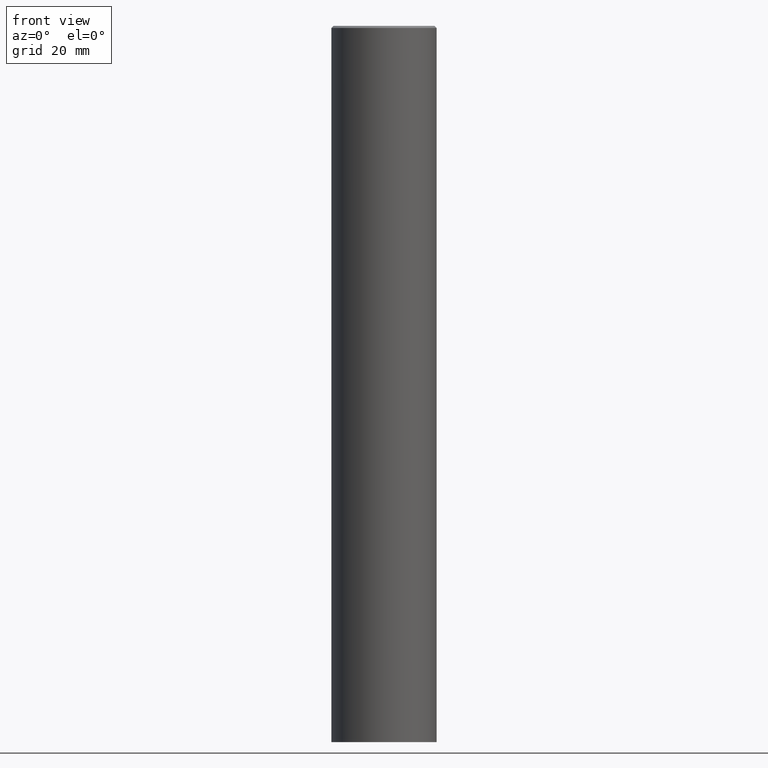
[diagram: clean part render]
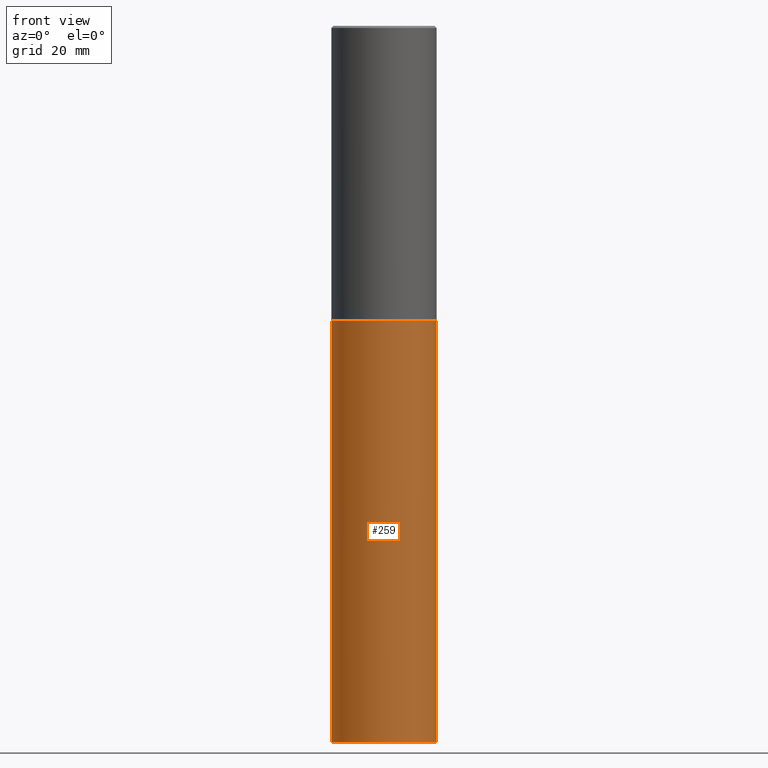
[diagram: same view with one face highlighted and labeled with its STEP entity id]
A machine part, front view. The second image highlights one B-rep face of the part: STEP entity #259.
In plain terms, the highlighted cylindrical surface (partial cylindrical patch) has radius 12.5006 mm, axis along (-0, 0, 1).
Its self-contained STEP definition (entity closure, byte-faithful):
#4 = VECTOR ( 'NONE', #146, 39.37007874015748143 ) ;
#16 = CARTESIAN_POINT ( 'NONE',  ( 0.4921499999999999764, -2.680480053456658516E-14, -6.692899999999999849 ) ) ;
#24 = DIRECTION ( 'NONE',  ( -2.445468806185136597E-29, 3.491481338843145583E-15, 1.000000000000000000 ) ) ;
#30 = DIRECTION ( 'NONE',  ( -2.445468806185136597E-29, 3.491481338843145583E-15, 1.000000000000000000 ) ) ;
#51 = ORIENTED_EDGE ( 'NONE', *, *, #103, .T. ) ;
#52 = DIRECTION ( 'NONE',  ( 1.000000000000000000, -6.982962677686265922E-15, 0.000000000000000000 ) ) ;
#77 = VERTEX_POINT ( 'NONE', #16 ) ;
#100 = EDGE_CURVE ( 'NONE', #110, #282, #158, .T. ) ;
#103 = EDGE_CURVE ( 'NONE', #77, #282, #214, .T. ) ;
#105 = CARTESIAN_POINT ( 'NONE',  ( -0.4921499999999999764, -1.299821836318722399E-14, -6.692899999999999849 ) ) ;
#110 = VERTEX_POINT ( 'NONE', #305 ) ;
#120 = LINE ( 'NONE', #174, #4 ) ;
#144 = AXIS2_PLACEMENT_3D ( 'NONE', #279, #223, #250 ) ;
#146 = DIRECTION ( 'NONE',  ( -2.445468806185136877E-29, 3.491481338843145188E-15, 1.000000000000000000 ) ) ;
#158 = CIRCLE ( 'NONE', #265, 0.4921499999999999764 ) ;
#169 = EDGE_CURVE ( 'NONE', #338, #110, #120, .T. ) ;
#171 = VECTOR ( 'NONE', #336, 39.37007874015748143 ) ;
#174 = CARTESIAN_POINT ( 'NONE',  ( -0.4921499999999999764, 3.496936074043332897E-15, -2.420853904668951509E-29 ) ) ;
#191 = CIRCLE ( 'NONE', #195, 0.4921499999999999764 ) ;
#195 = AXIS2_PLACEMENT_3D ( 'NONE', #220, #30, #52 ) ;
#207 = CARTESIAN_POINT ( 'NONE',  ( 6.739467482965618232E-29, -9.622173421717824390E-15, -2.755900000000000016 ) ) ;
#214 = LINE ( 'NONE', #340, #171 ) ;
#220 = CARTESIAN_POINT ( 'NONE',  ( 1.636727817291649966E-28, -2.336813545274328780E-14, -6.692899999999999849 ) ) ;
#223 = DIRECTION ( 'NONE',  ( -2.445468806185136597E-29, 3.491481338843145583E-15, 1.000000000000000000 ) ) ;
#240 = ORIENTED_EDGE ( 'NONE', *, *, #100, .F. ) ;
#250 = DIRECTION ( 'NONE',  ( 1.000000000000000000, -6.982962677686265922E-15, 4.876176775795935793E-29 ) ) ;
#259 = ADVANCED_FACE ( 'NONE', ( #364 ), #277, .T. ) ;
#262 = ORIENTED_EDGE ( 'NONE', *, *, #275, .T. ) ;
#265 = AXIS2_PLACEMENT_3D ( 'NONE', #207, #24, #365 ) ;
#273 = EDGE_LOOP ( 'NONE', ( #359, #262, #51, #240 ) ) ;
#275 = EDGE_CURVE ( 'NONE', #338, #77, #191, .T. ) ;
#277 = CYLINDRICAL_SURFACE ( 'NONE', #144, 0.4921499999999999764 ) ;
#279 = CARTESIAN_POINT ( 'NONE',  ( 0.000000000000000000, 0.000000000000000000, 0.000000000000000000 ) ) ;
#282 = VERTEX_POINT ( 'NONE', #329 ) ;
#305 = CARTESIAN_POINT ( 'NONE',  ( -0.4921499999999999764, -1.299821836318722399E-14, -2.755900000000000016 ) ) ;
#329 = CARTESIAN_POINT ( 'NONE',  ( 0.4921499999999999764, -1.305883850354112017E-14, -2.755900000000000016 ) ) ;
#336 = DIRECTION ( 'NONE',  ( -2.445468806185136877E-29, 3.491481338843145188E-15, 1.000000000000000000 ) ) ;
#338 = VERTEX_POINT ( 'NONE', #105 ) ;
#340 = CARTESIAN_POINT ( 'NONE',  ( 0.4921499999999999764, -3.436665081823295777E-15, 2.399810400207969603E-29 ) ) ;
#359 = ORIENTED_EDGE ( 'NONE', *, *, #169, .F. ) ;
#364 = FACE_OUTER_BOUND ( 'NONE', #273, .T. ) ;
#365 = DIRECTION ( 'NONE',  ( 1.000000000000000000, -6.982962677686265922E-15, 0.000000000000000000 ) ) ;